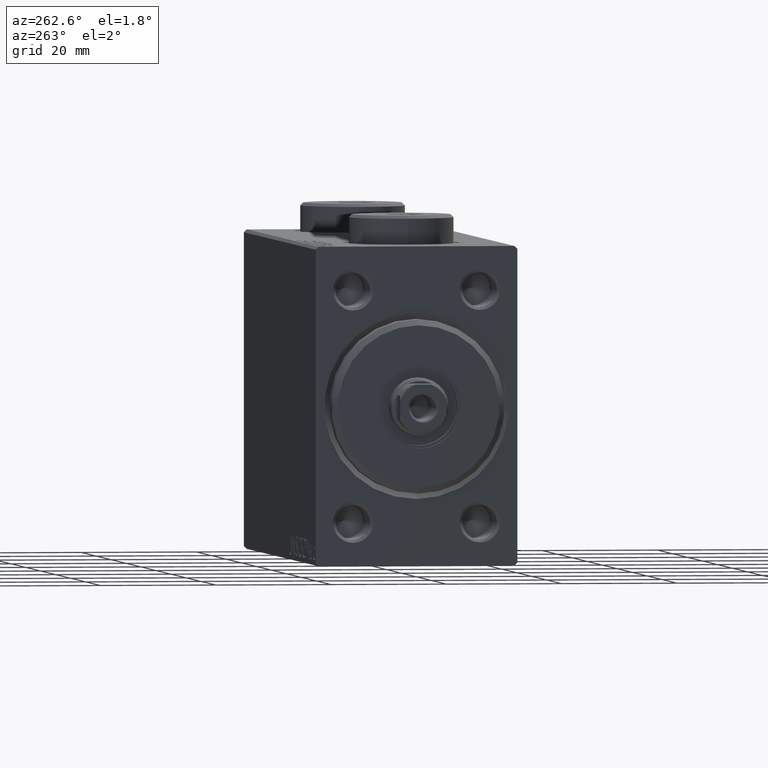
[diagram: clean part render]
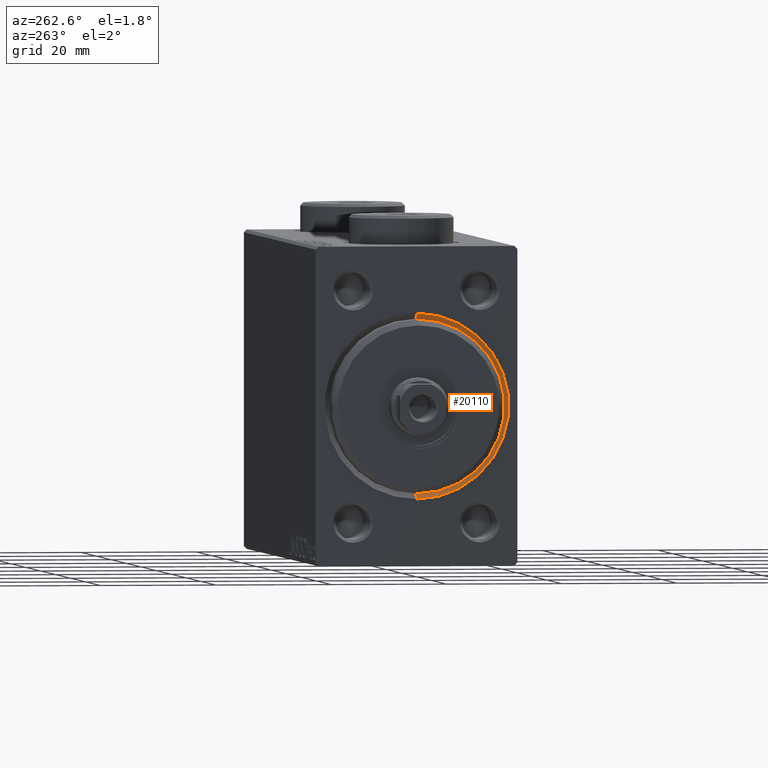
[diagram: same view with one face highlighted and labeled with its STEP entity id]
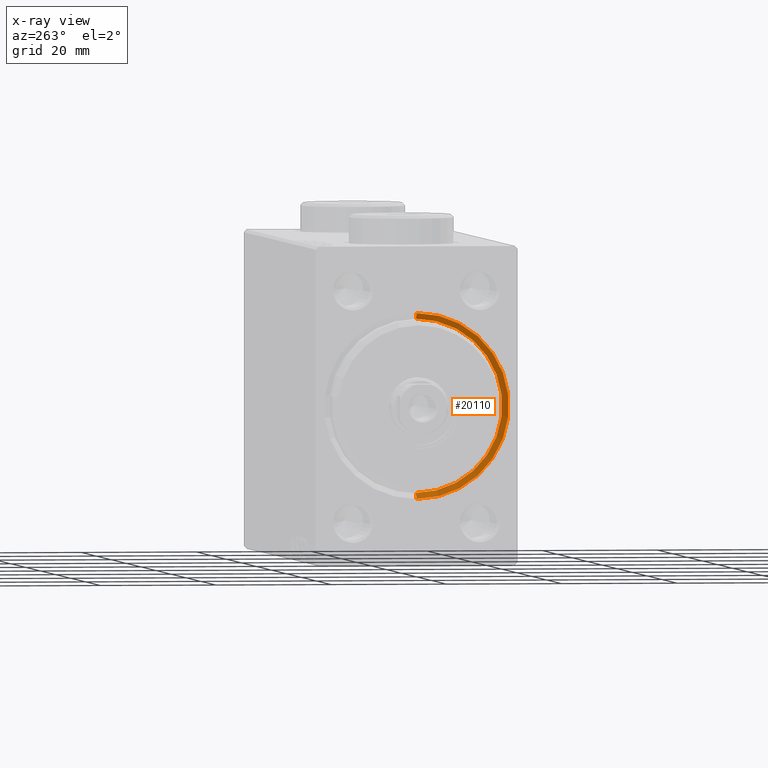
[diagram: x-ray of the same camera — body ghosted, the highlighted face saturated]
A machine part, auxiliary view. The second image highlights one B-rep face of the part: STEP entity #20110.
The next image is the same camera in x-ray: the body ghosted, the highlighted face saturated — about 0% of this face is hidden behind the body in this view.
In plain terms, the highlighted conical surface has half-angle 45 deg.
Its self-contained STEP definition (entity closure, byte-faithful):
#397 = DIRECTION ( 'NONE',  ( 0.000000000000000000, 0.000000000000000000, 1.000000000000000000 ) ) ;
#464 = EDGE_LOOP ( 'NONE', ( #35294, #5320, #16986, #34942 ) ) ;
#3808 = CARTESIAN_POINT ( 'NONE',  ( 1.000000000000026867, 1.836970198721029589E-15, -15.00000000000000000 ) ) ;
#5247 = CARTESIAN_POINT ( 'NONE',  ( 0.000000000000000000, 0.000000000000000000, 0.000000000000000000 ) ) ;
#5320 = ORIENTED_EDGE ( 'NONE', *, *, #44488, .T. ) ;
#10732 = DIRECTION ( 'NONE',  ( -1.000000000000000000, 0.000000000000000000, 0.000000000000000000 ) ) ;
#13837 = CONICAL_SURFACE ( 'NONE', #45469, 15.00000000000000000, 0.7853981633974491672 ) ;
#16986 = ORIENTED_EDGE ( 'NONE', *, *, #43239, .F. ) ;
#17028 = CARTESIAN_POINT ( 'NONE',  ( 1.000000000000026867, 0.000000000000000000, 0.000000000000000000 ) ) ;
#17355 = CARTESIAN_POINT ( 'NONE',  ( 1.000000000000026867, 1.836970198721029589E-15, -15.00000000000000000 ) ) ;
#17487 = DIRECTION ( 'NONE',  ( 0.000000000000000000, 0.000000000000000000, -1.000000000000000000 ) ) ;
#17653 = FACE_OUTER_BOUND ( 'NONE', #464, .T. ) ;
#17815 = LINE ( 'NONE', #31872, #42005 ) ;
#19302 = DIRECTION ( 'NONE',  ( 1.000000000000000000, 0.000000000000000000, 0.000000000000000000 ) ) ;
#20110 = ADVANCED_FACE ( 'NONE', ( #17653 ), #13837, .F. ) ;
#20425 = EDGE_CURVE ( 'NONE', #32518, #35994, #24891, .T. ) ;
#21052 = VECTOR ( 'NONE', #31906, 999.9999999999998863 ) ;
#21565 = CARTESIAN_POINT ( 'NONE',  ( 1.000000000000026867, 0.000000000000000000, 0.000000000000000000 ) ) ;
#24891 = CIRCLE ( 'NONE', #29291, 15.00000000000000000 ) ;
#25734 = CARTESIAN_POINT ( 'NONE',  ( 0.000000000000000000, 1.959434878635768681E-15, -16.00000000000002842 ) ) ;
#26123 = AXIS2_PLACEMENT_3D ( 'NONE', #5247, #19302, #29902 ) ;
#27549 = EDGE_CURVE ( 'NONE', #35994, #35112, #17815, .T. ) ;
#29291 = AXIS2_PLACEMENT_3D ( 'NONE', #17028, #31321, #17487 ) ;
#29902 = DIRECTION ( 'NONE',  ( 0.000000000000000000, 0.000000000000000000, -1.000000000000000000 ) ) ;
#31321 = DIRECTION ( 'NONE',  ( -1.000000000000000000, 0.000000000000000000, 0.000000000000000000 ) ) ;
#31872 = CARTESIAN_POINT ( 'NONE',  ( 1.000000000000026867, 0.000000000000000000, 15.00000000000000000 ) ) ;
#31874 = CARTESIAN_POINT ( 'NONE',  ( 1.000000000000026867, 0.000000000000000000, 15.00000000000000000 ) ) ;
#31906 = DIRECTION ( 'NONE',  ( -0.7071067811865469066, 8.659560562354942719E-17, -0.7071067811865482389 ) ) ;
#32518 = VERTEX_POINT ( 'NONE', #17355 ) ;
#34942 = ORIENTED_EDGE ( 'NONE', *, *, #27549, .F. ) ;
#35112 = VERTEX_POINT ( 'NONE', #45229 ) ;
#35294 = ORIENTED_EDGE ( 'NONE', *, *, #20425, .F. ) ;
#35351 = LINE ( 'NONE', #3808, #21052 ) ;
#35994 = VERTEX_POINT ( 'NONE', #31874 ) ;
#38766 = DIRECTION ( 'NONE',  ( -0.7071067811865469066, 0.000000000000000000, 0.7071067811865482389 ) ) ;
#39843 = VERTEX_POINT ( 'NONE', #25734 ) ;
#42005 = VECTOR ( 'NONE', #38766, 999.9999999999998863 ) ;
#43239 = EDGE_CURVE ( 'NONE', #35112, #39843, #45260, .T. ) ;
#44488 = EDGE_CURVE ( 'NONE', #32518, #39843, #35351, .T. ) ;
#45229 = CARTESIAN_POINT ( 'NONE',  ( 0.000000000000000000, 0.000000000000000000, 16.00000000000002842 ) ) ;
#45260 = CIRCLE ( 'NONE', #26123, 16.00000000000002842 ) ;
#45469 = AXIS2_PLACEMENT_3D ( 'NONE', #21565, #10732, #397 ) ;